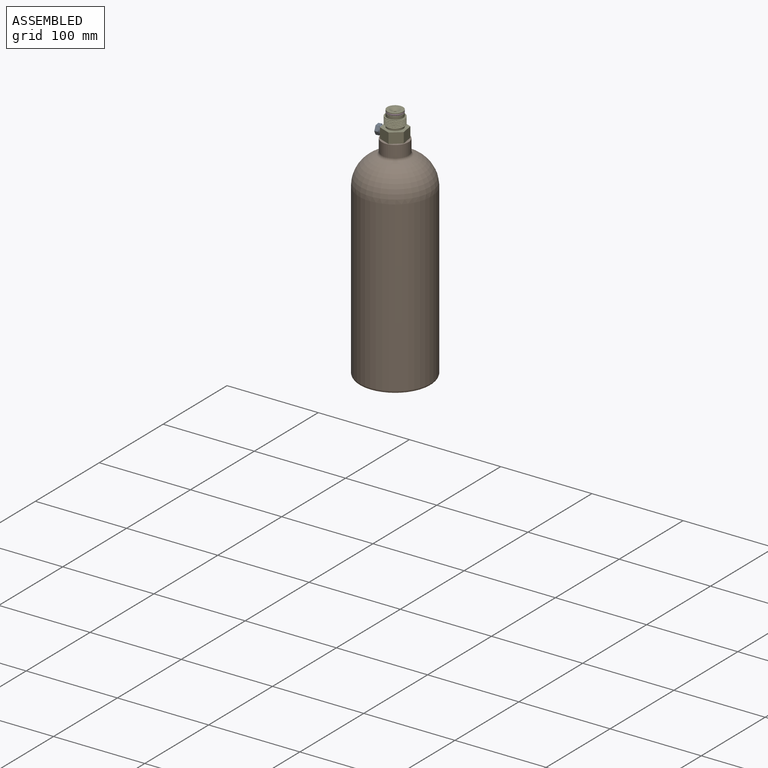
[diagram: assembled view]
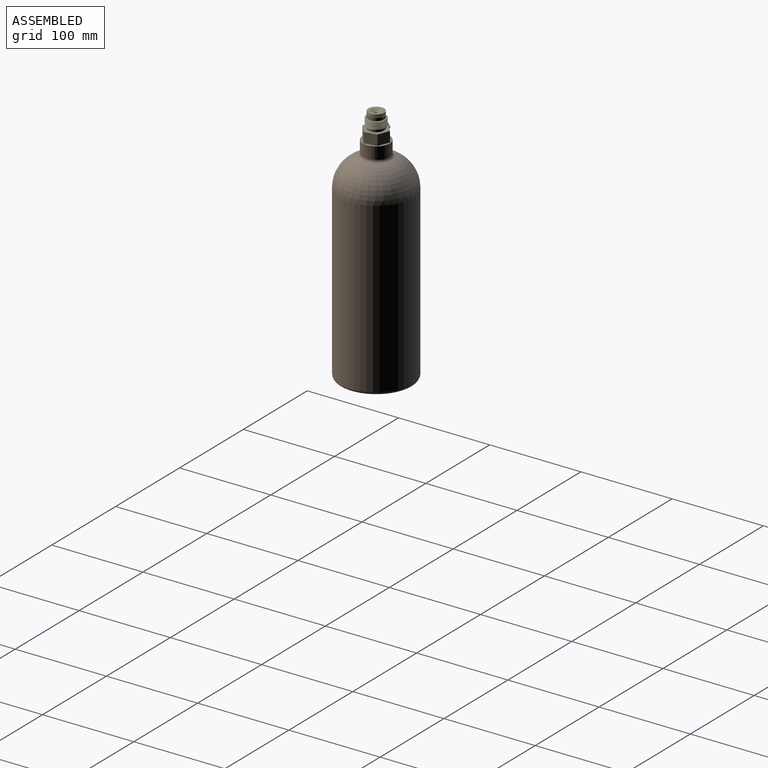
[diagram: assembled view, second angle]
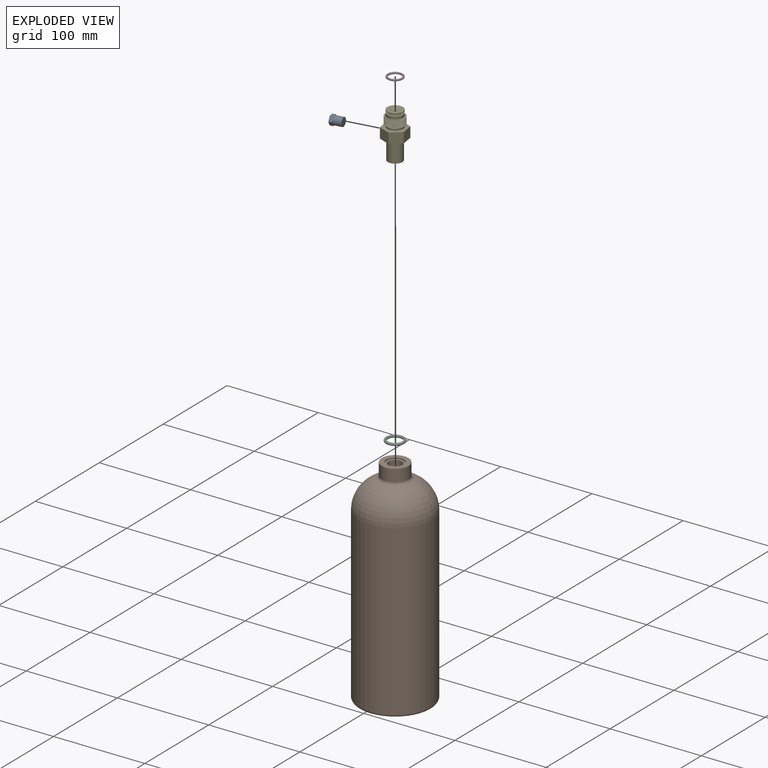
[diagram: exploded view]
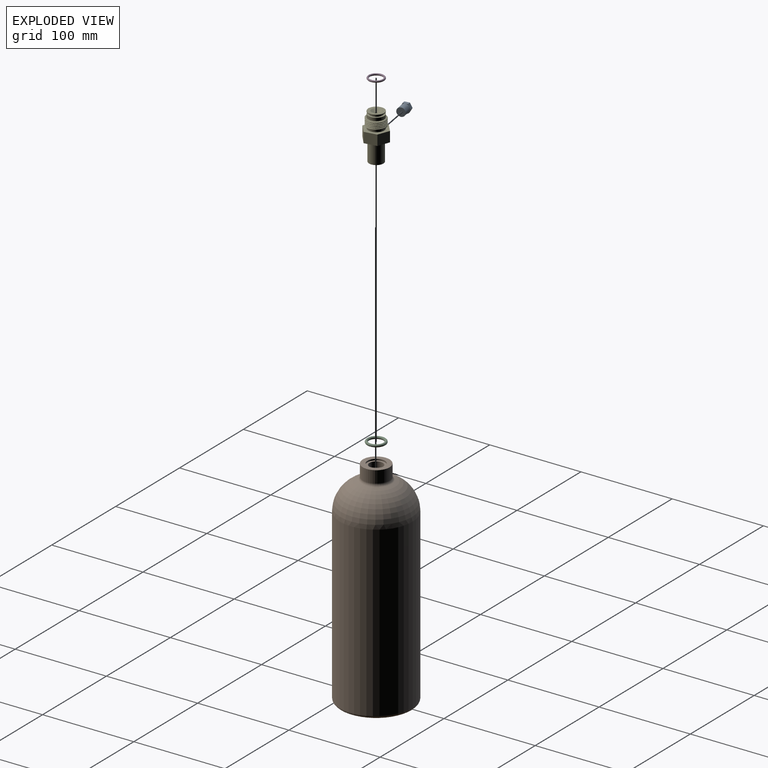
[diagram: exploded view, second angle]
ASSEMBLY  parts=5 mates=6
PART A: 52 faces, bbox 11x12.7x9.5 mm
  f0: plane 10.97x9.5mm, normal (0,-1,0), area 65.5mm2, adj f1,f2,f3,f4,f5,f6,f10,f11
  f1: plane 4.75x3.81mm, normal (0.87,0,0.5), area 20.9mm2, adj f0,f2,f6,f8
  f2: plane 5.48x3.81mm, normal (0,0,1), area 20.9mm2, adj f0,f1,f3,f8
  f3: plane 4.75x3.81mm, normal (-0.87,0,0.5), area 20.9mm2, adj f0,f2,f4,f8
  f4: plane 4.75x3.81mm, normal (-0.87,0,-0.5), area 20.9mm2, adj f0,f3,f5,f8
  f5: plane 5.48x3.81mm, normal (0,0,-1), area 20.9mm2, adj f0,f4,f6,f8
  f6: plane 4.75x3.81mm, normal (0.87,0,-0.5), area 20.9mm2, adj f0,f1,f5,f8
  f7: cylinder r=4.69mm len=9.37mm, axis (0,1,0), area 261.8mm2, adj f8,f9
  f8: plane 10.97x9.5mm, normal (0,1,0), area 9.2mm2, adj f1,f2,f3,f4,f5,f6,f7
  f9: plane 9.37x9.37mm, normal (0,1,0), area 69mm2, adj f7
  f10: plane 0.94x0mm, normal (0,0,1), area 0mm2, adj f0,f11,f22,f23
  f11: plane 2.17x1.37mm, normal (-0.85,0,-0.53), area 0mm2, adj f0,f10,f12,f23
  f12: plane 1.72x1.36mm, normal (-0.79,0,0.62), area 0mm2, adj f0,f11,f13,f23
  f13: plane 0.92x0mm, normal (0,0,-1), area 0mm2, adj f0,f12,f14,f23
  f14: plane 1.32x1.06mm, normal (0.78,0,-0.62), area 0mm2, adj f0,f13,f15,f23
  f15: plane 0.46x0.32mm, normal (0.82,0,-0.58), area 0mm2, adj f0,f14,f16,f23
  f16: plane 1.78x0mm, normal (-1,0,0), area 0mm2, adj f0,f15,f17,f23
  f17: plane 0.83x0mm, normal (0,0,-1), area 0mm2, adj f0,f16,f18,f23
  f18: plane 3.89x0mm, normal (1,0,0), area 0mm2, adj f0,f17,f19,f23
  f19: plane 0.83x0mm, normal (0,0,1), area 0mm2, adj f0,f18,f20,f23
  f20: plane 1.39x0mm, normal (-1,0,0), area 0mm2, adj f0,f19,f21,f23
  f21: plane 0.35x0.25mm, normal (-0.58,0,0.81), area 0mm2, adj f0,f20,f22,f23
  f22: plane 1.64x1.02mm, normal (0.85,0,0.53), area 0mm2, adj f0,f10,f21,f23
  f23: plane 3.89x3.13mm, normal (0,-1,0), area 7mm2, adj f10,f11,f12,f13,f14,f15,f16,f17
  f24: extruded ~0.62x0.22mm, area 0mm2, adj f0,f25,f50,f51
  f25: extruded ~0.68x0.35mm, area 0mm2, adj f0,f24,f26,f51
  f26: extruded ~0.95x0.25mm, area 0mm2, adj f0,f25,f27,f51
  f27: extruded ~1.27x0.38mm, area 0mm2, adj f0,f26,f28,f51
  f28: plane 0.57x0.38mm, normal (0.83,0,0.56), area 0mm2, adj f0,f27,f29,f51
  f29: extruded ~0.44x0.22mm, area 0mm2, adj f0,f28,f30,f51
  f30: extruded ~0.39x0.06mm, area 0mm2, adj f0,f29,f31,f51
  f31: extruded ~0.55x0.44mm, area 0mm2, adj f0,f30,f32,f51
  f32: extruded ~0.41x0.21mm, area 0mm2, adj f0,f31,f33,f51
  f33: extruded ~0.66x0.12mm, area 0mm2, adj f0,f32,f34,f51
  f34: plane 0.3x0mm, normal (0,0,-1), area 0mm2, adj f0,f33,f35,f51
  f35: plane 0.63x0mm, normal (1,0,0), area 0mm2, adj f0,f34,f36,f51
  f36: plane 0.3x0mm, normal (0,0,1), area 0mm2, adj f0,f35,f37,f51
  f37: extruded ~0.71x0.11mm, area 0mm2, adj f0,f36,f38,f51
  f38: extruded ~0.39x0.22mm, area 0mm2, adj f0,f37,f39,f51
  f39: extruded ~0.45x0.19mm, area 0mm2, adj f0,f38,f40,f51
  f40: extruded ~0.6x0.14mm, area 0mm2, adj f0,f39,f41,f51
  f41: extruded ~0.54x0.07mm, area 0mm2, adj f0,f40,f42,f51
  f42: extruded ~0.5x0.19mm, area 0mm2, adj f0,f41,f43,f51
  f43: plane 0.7x0mm, normal (1,0,0), area 0mm2, adj f0,f42,f44,f51
  f44: extruded ~1.12x0.21mm, area 0mm2, adj f0,f43,f45,f51
  f45: extruded ~1.16x0.31mm, area 0mm2, adj f0,f44,f46,f51
  f46: extruded ~0.87x0.41mm, area 0mm2, adj f0,f45,f47,f51
  f47: extruded ~0.61x0.24mm, area 0mm2, adj f0,f46,f48,f51
  f48: extruded ~0.71x0.29mm, area 0mm2, adj f0,f47,f49,f51
  f49: plane 0.02x0mm, normal (-1,0,0), area 0mm2, adj f0,f48,f50,f51
  f50: extruded ~0.62x0.35mm, area 0mm2, adj f0,f24,f49,f51
  f51: plane 4x2.69mm, normal (0,-1,0), area 5.7mm2, adj f24,f25,f26,f27,f28,f29,f30,f31
PART B: 17 faces, bbox 85.9x85.9x235 mm
  f0: cylinder r=14.69mm len=29.39mm, axis (0,0,1), area 1210.5mm2, adj f1,f7
  f1: torus R=17.87mm, axis (0,0,1), area 390mm2, adj f0,f2
  f2: torus R=7.02mm, axis (0,0,1), area 8210.4mm2, adj f1,f3
  f3: cylinder r=39.69mm len=184.51mm, axis (0,0,1), area 46009mm2, adj f2,f4
  f4: torus R=36.51mm, axis (0,0,1), area 1207.5mm2, adj f3,f5
  f5: plane 73.03x73.03mm, normal (0,0,-1), area 2625.8mm2, adj f4,f6
  f6: torus R=6.25mm, axis (0,0,1), area 1567.7mm2, adj f5
  f7: plane 29.39x29.39mm, normal (0,0,1), area 393.3mm2, adj f0,f8
  f8: cylinder r=9.53mm len=19.05mm, axis (0,0,1), area 87.4mm2, adj f7,f9
  f9: plane 19.05x19.05mm, normal (0,0,1), area 115.7mm2, adj f8,f16
  f10: torus R=6.25mm, axis (0,0,1), area 1598.7mm2, adj f11
  f11: plane 72.58x72.58mm, normal (0,0,1), area 2543.3mm2, adj f10,f12
  f12: cylinder r=36.29mm len=184.28mm, axis (0,0,1), area 42016.2mm2, adj f11,f13
  f13: torus R=7.02mm, axis (0,0,1), area 6760mm2, adj f12,f14
  f14: torus R=17.87mm, axis (0,0,1), area 666.9mm2, adj f13,f15
  f15: plane 22.59x22.59mm, normal (0,0,-1), area 231.4mm2, adj f14,f16
  f16: cylinder r=7.34mm len=14.68mm, axis (0,0,1), area 541.9mm2, adj f9,f15
PART C: 1 faces, bbox 22.3x22.3x2.8 mm
  f0: torus R=8.9mm, axis (0,0,1), area 491mm2
PART D: 1 faces, bbox 18.9x18.9x2 mm
  f0: torus R=7.7mm, axis (0,0,1), area 308.7mm2
PART E: 31 faces, bbox 28.1x24.9x50.9 mm
  f0: plane 21.38x21.09mm, normal (0,0,-1), area 90.4mm2, adj f13,f14,f27,f28
  f1: plane 27.46x23.78mm, normal (0,0,-1), area 291.7mm2, adj f2,f16,f17,f18,f19,f20,f23
  f2: cylinder r=7.94mm len=21.63mm, axis (0,0,-1), area 1078.7mm2, adj f1,f3
  f3: plane 15.88x15.88mm, normal (0,0,-1), area 125.1mm2, adj f2,f21
  f4: cylinder r=1.27mm len=14.93mm, axis (0,0,-1), area 119.1mm2, adj f5,f22
  f5: cone r=5.33mm half-angle=59.2deg, axis (0,0,1), area 98.1mm2, adj f4,f6
  f6: plane 17.37x17.37mm, normal (0,0,1), area 147.7mm2, adj f5,f7
  f7: cylinder r=8.69mm len=17.37mm, axis (0,0,-1), area 52.7mm2, adj f6,f8
  f8: plane 17.37x17.37mm, normal (0,0,-1), area 97.9mm2, adj f7,f9
  f9: cylinder r=6.65mm len=13.31mm, axis (0,0,-1), area 85mm2, adj f8,f10
  f10: plane 17.37x17.37mm, normal (0,0,1), area 97.9mm2, adj f9,f11
  f11: cylinder r=8.69mm len=17.37mm, axis (0,0,-1), area 185.1mm2, adj f10,f12
  f12: plane 21.38x21.09mm, normal (0,0,1), area 90.3mm2, adj f11,f13,f29,f30
  f13: cylinder r=10.38mm len=20.76mm, axis (0,0,-1), area 156.9mm2, adj f0,f12,f27,f28,f29,f30
  f14: cylinder r=8.69mm len=17.37mm, axis (0,0,-1), area 168.4mm2, adj f0,f15
  f15: plane 27.46x23.78mm, normal (0,0,1), area 252.6mm2, adj f14,f16,f17,f18,f19,f20,f23
  f16: plane 13.73x11.27mm, normal (0,-1,0), area 154.7mm2, adj f1,f15,f19,f23
  f17: plane 11.89x11.27mm, normal (0.87,0.5,0), area 154.7mm2, adj f1,f15,f19,f20
  f18: plane 11.89x11.27mm, normal (-0.87,0.5,0), area 154.7mm2, adj f1,f15,f20,f23
  f19: plane 11.89x11.27mm, normal (0.87,-0.5,0), area 154.7mm2, adj f1,f15,f16,f17
  f20: plane 13.73x11.27mm, normal (0,1,0), area 154.7mm2, adj f1,f15,f17,f18
  f21: cylinder r=4.81mm len=32.89mm, axis (0,0,1), area 986.5mm2, adj f3,f22,f26
  f22: plane 9.63x9.63mm, normal (0,0,-1), area 67.7mm2, adj f4,f21
  f23: plane 11.89x11.27mm, normal (-0.87,-0.5,0), area 97.3mm2, adj f1,f15,f16,f18,f24
  f24: cylinder r=4.27mm len=10.62mm, axis (-0.87,-0.5,0), area 172.9mm2, adj f23,f25
  f25: plane 8.55x7.4mm, normal (-0.87,-0.5,0), area 49.2mm2, adj f24,f26
  f26: cylinder r=1.61mm len=3.25mm, axis (-0.87,-0.5,0), area 9.3mm2, adj f21,f25
  f27: bspline ~24.24x21mm, area 339.9mm2, adj f0,f13,f29,f30
  f28: plane 0.98x0.57mm, normal (0,-1,0), area 0.3mm2, adj f0,f13,f30
  f29: plane 0.98x0.57mm, normal (0,1,0), area 0.3mm2, adj f12,f13,f27
  f30: bspline ~24.24x21mm, area 340.1mm2, adj f12,f13,f27,f28
PLACE A rot(axis=(0,0,-1),80.7deg) t=(5.62,32.58,146.74)mm
PLACE B rot(axis=(0,0,-1),20.7deg) t=(11,33.46,58.56)mm
PLACE C t=(11,33.46,139.71)mm
PLACE D t=(11,33.46,167.74)mm
PLACE E rot(axis=(0,0,-1),20.7deg) t=(11,33.46,141.11)mm
MATE cylindrical E.f2 <-> B.f0  axis (0,0,-1) through (11,33.46,130.3)mm
MATE cylindrical E.f2 <-> D.f0  axis (0,0,-1) through (11,33.46,167.74)mm
MATE planar B.f0 <-> E.f2  axis (0,0,1) through (11,33.46,141.11)mm
MATE fastened A.f7 <-> E.f26  axis (0.99,0.16,0) through (5.62,32.58,146.74)mm
MATE cylindrical A.f7 <-> E.f26  axis (0.99,0.16,0) through (5.62,32.58,146.74)mm
MATE cylindrical C.f0 <-> E.f2  axis (0,0,1) through (11,33.46,139.71)mm
